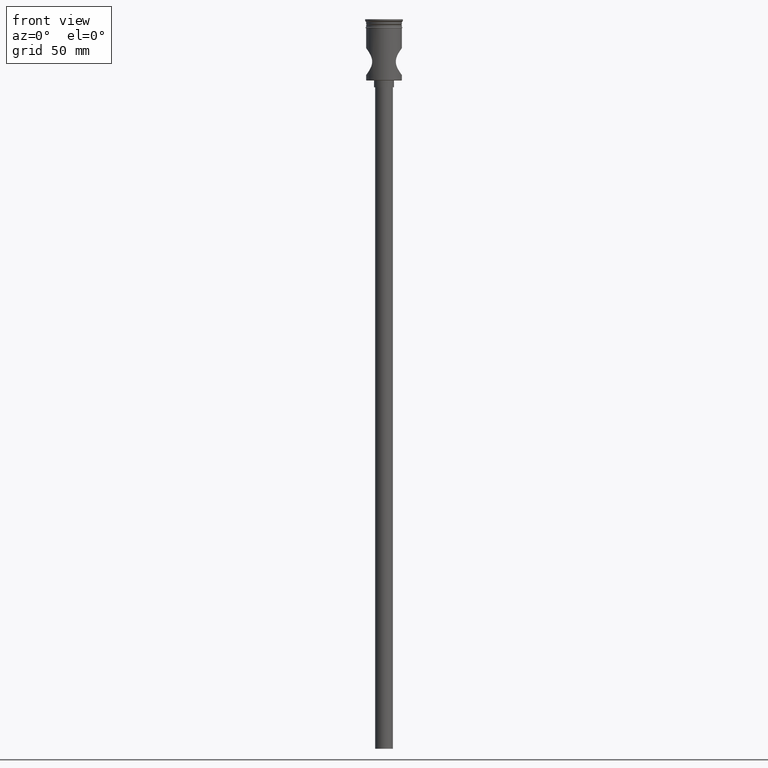
[diagram: clean part render]
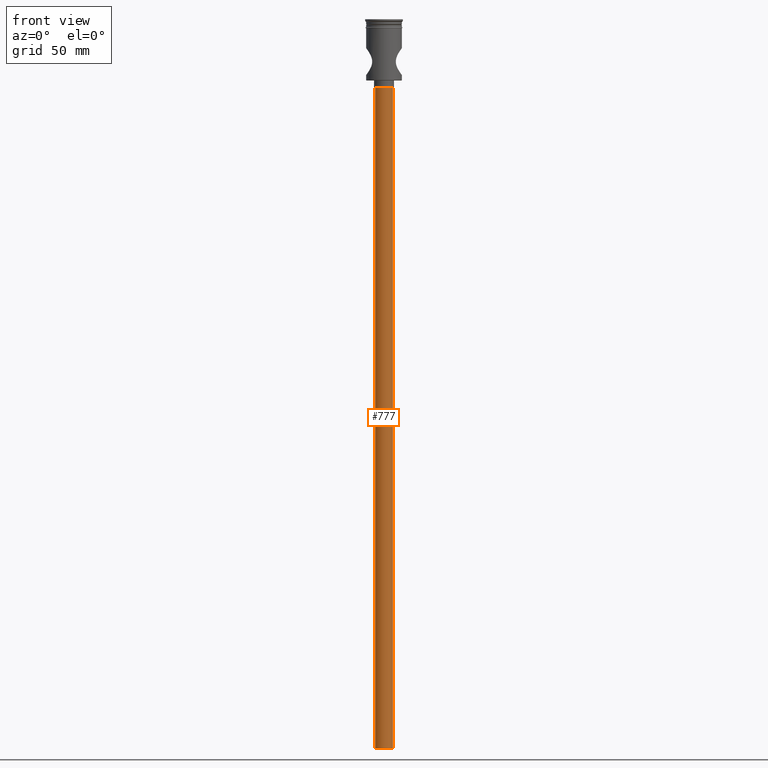
[diagram: same view with one face highlighted and labeled with its STEP entity id]
A machine part, front view. The second image highlights one B-rep face of the part: STEP entity #777.
In plain terms, the highlighted cylindrical surface (edge-blend (fillet) strip) has radius 4 mm, axis along (-0, -0, 1).
Its self-contained STEP definition (entity closure, byte-faithful):
#76 = DIRECTION ( 'NONE',  ( 0.000000000000000000, 0.000000000000000000, -1.000000000000000000 ) ) ;
#166 = DIRECTION ( 'NONE',  ( -1.000000000000000000, 0.000000000000000000, 0.000000000000000000 ) ) ;
#182 = DIRECTION ( 'NONE',  ( 0.000000000000000000, 0.000000000000000000, -1.000000000000000000 ) ) ;
#216 = EDGE_LOOP ( 'NONE', ( #1359, #306, #628, #1100 ) ) ;
#254 = VECTOR ( 'NONE', #562, 1000.000000000000000 ) ;
#276 = AXIS2_PLACEMENT_3D ( 'NONE', #780, #182, #166 ) ;
#284 = CARTESIAN_POINT ( 'NONE',  ( -4.000000000000000000, 4.898587196589412829E-16, -327.5000000000000000 ) ) ;
#297 = DIRECTION ( 'NONE',  ( -0.000000000000000000, -0.000000000000000000, 1.000000000000000000 ) ) ;
#303 = AXIS2_PLACEMENT_3D ( 'NONE', #747, #76, #1236 ) ;
#304 = EDGE_CURVE ( 'NONE', #557, #1220, #585, .T. ) ;
#306 = ORIENTED_EDGE ( 'NONE', *, *, #866, .F. ) ;
#317 = CARTESIAN_POINT ( 'NONE',  ( 4.000000000000000000, 0.000000000000000000, -327.5000000000000000 ) ) ;
#331 = AXIS2_PLACEMENT_3D ( 'NONE', #1129, #297, #1253 ) ;
#339 = LINE ( 'NONE', #798, #254 ) ;
#410 = CARTESIAN_POINT ( 'NONE',  ( 4.000000000000000000, 0.000000000000000000, -30.50000000000000000 ) ) ;
#423 = VECTOR ( 'NONE', #1073, 1000.000000000000000 ) ;
#557 = VERTEX_POINT ( 'NONE', #317 ) ;
#562 = DIRECTION ( 'NONE',  ( -0.000000000000000000, -0.000000000000000000, 1.000000000000000000 ) ) ;
#578 = CARTESIAN_POINT ( 'NONE',  ( 4.000000000000000000, 0.000000000000000000, -327.5000000000000000 ) ) ;
#585 = LINE ( 'NONE', #578, #423 ) ;
#628 = ORIENTED_EDGE ( 'NONE', *, *, #304, .T. ) ;
#661 = VERTEX_POINT ( 'NONE', #284 ) ;
#747 = CARTESIAN_POINT ( 'NONE',  ( 0.000000000000000000, 0.000000000000000000, -327.5000000000000000 ) ) ;
#769 = CIRCLE ( 'NONE', #276, 4.000000000000000000 ) ;
#777 = ADVANCED_FACE ( 'NONE', ( #996 ), #882, .T. ) ;
#779 = EDGE_CURVE ( 'NONE', #1220, #1135, #769, .T. ) ;
#780 = CARTESIAN_POINT ( 'NONE',  ( 0.000000000000000000, 0.000000000000000000, -30.50000000000000000 ) ) ;
#798 = CARTESIAN_POINT ( 'NONE',  ( -4.000000000000000000, 4.898587196589412829E-16, -327.5000000000000000 ) ) ;
#851 = CARTESIAN_POINT ( 'NONE',  ( -4.000000000000000000, 4.898587196589412829E-16, -30.50000000000000000 ) ) ;
#866 = EDGE_CURVE ( 'NONE', #557, #661, #1518, .T. ) ;
#882 = CYLINDRICAL_SURFACE ( 'NONE', #331, 4.000000000000000000 ) ;
#994 = EDGE_CURVE ( 'NONE', #661, #1135, #339, .T. ) ;
#996 = FACE_OUTER_BOUND ( 'NONE', #216, .T. ) ;
#1073 = DIRECTION ( 'NONE',  ( -0.000000000000000000, -0.000000000000000000, 1.000000000000000000 ) ) ;
#1100 = ORIENTED_EDGE ( 'NONE', *, *, #779, .T. ) ;
#1129 = CARTESIAN_POINT ( 'NONE',  ( 0.000000000000000000, 0.000000000000000000, -327.5000000000000000 ) ) ;
#1135 = VERTEX_POINT ( 'NONE', #851 ) ;
#1220 = VERTEX_POINT ( 'NONE', #410 ) ;
#1236 = DIRECTION ( 'NONE',  ( -1.000000000000000000, 0.000000000000000000, 0.000000000000000000 ) ) ;
#1253 = DIRECTION ( 'NONE',  ( 1.000000000000000000, 0.000000000000000000, 0.000000000000000000 ) ) ;
#1359 = ORIENTED_EDGE ( 'NONE', *, *, #994, .F. ) ;
#1518 = CIRCLE ( 'NONE', #303, 4.000000000000000000 ) ;